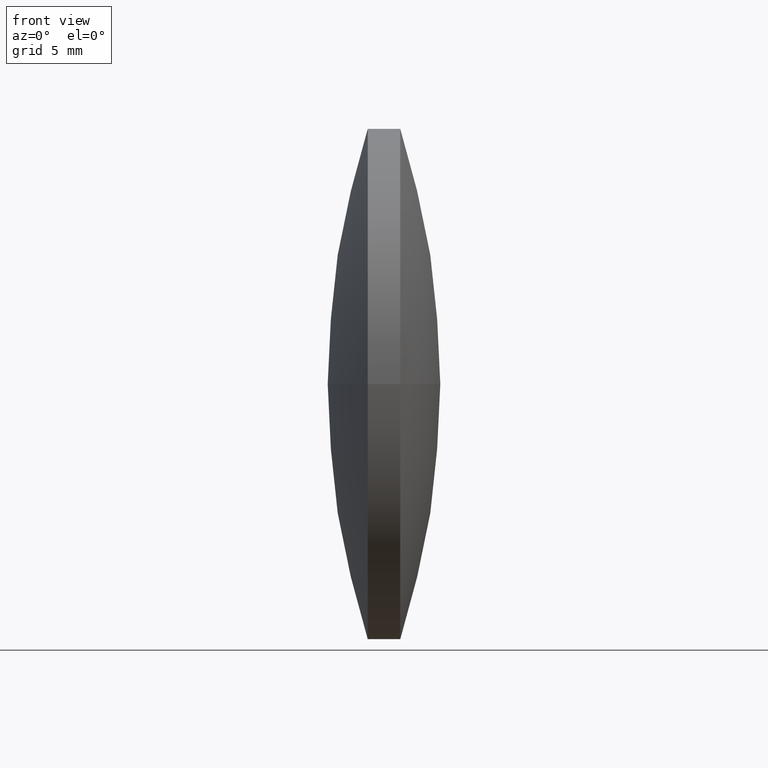
[diagram: clean part render]
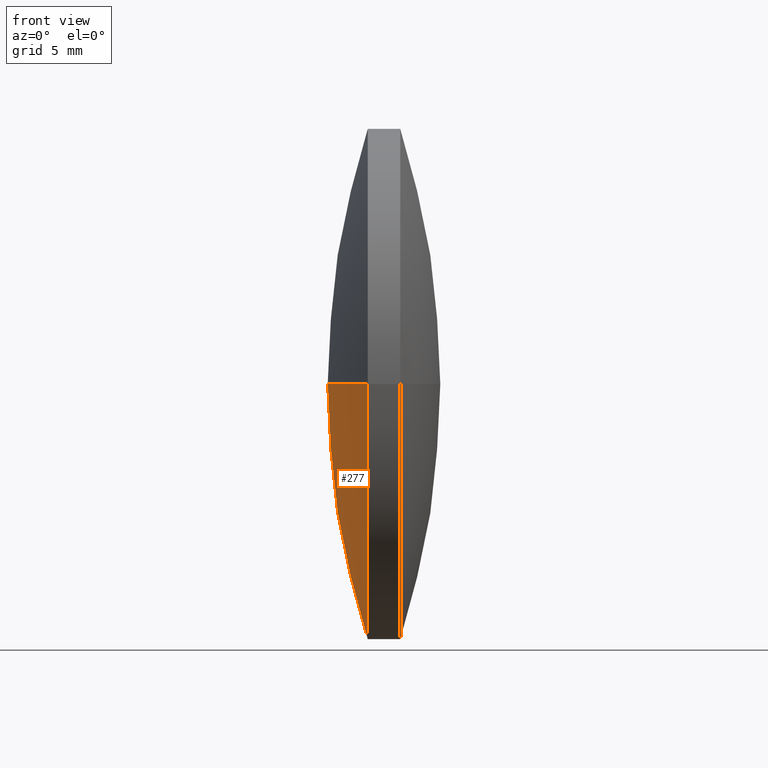
[diagram: same view with one face highlighted and labeled with its STEP entity id]
A machine part, front view. The second image highlights one B-rep face of the part: STEP entity #277.
In plain terms, the highlighted spherical surface has radius 40.9391 mm.
Its self-contained STEP definition (entity closure, byte-faithful):
#2 = CARTESIAN_POINT ( 'NONE',  ( 123.2857842446510100, 47.85050494407934700, 0.0000000000000000000 ) ) ;
#19 = EDGE_LOOP ( 'NONE', ( #173, #93, #224 ) ) ;
#26 = DIRECTION ( 'NONE',  ( 0.0000000000000000000, 0.0000000000000000000, -1.000000000000000000 ) ) ;
#30 = DIRECTION ( 'NONE',  ( 4.406815958448730300E-015, 1.000000000000000000, 0.0000000000000000000 ) ) ;
#36 = FACE_OUTER_BOUND ( 'NONE', #19, .T. ) ;
#37 = VERTEX_POINT ( 'NONE', #142 ) ;
#42 = AXIS2_PLACEMENT_3D ( 'NONE', #97, #48, #290 ) ;
#48 = DIRECTION ( 'NONE',  ( -1.000000000000000000, 4.264506765781650100E-015, -0.0000000000000000000 ) ) ;
#59 = EDGE_CURVE ( 'NONE', #86, #255, #141, .T. ) ;
#66 = SPHERICAL_SURFACE ( 'NONE', #170, 40.93913682864477700 ) ;
#69 = DIRECTION ( 'NONE',  ( 0.0000000000000000000, 1.000000000000000000, 1.224646799147353200E-016 ) ) ;
#70 = CIRCLE ( 'NONE', #179, 40.93913682864476300 ) ;
#75 = CARTESIAN_POINT ( 'NONE',  ( 82.34664741600623500, 47.85050494407952500, 0.0000000000000000000 ) ) ;
#82 = DIRECTION ( 'NONE',  ( 1.000000000000000000, 0.0000000000000000000, 0.0000000000000000000 ) ) ;
#86 = VERTEX_POINT ( 'NONE', #189 ) ;
#93 = ORIENTED_EDGE ( 'NONE', *, *, #59, .T. ) ;
#94 = EDGE_CURVE ( 'NONE', #37, #86, #285, .T. ) ;
#97 = CARTESIAN_POINT ( 'NONE',  ( 84.30164741600614800, 47.85050494407936800, 0.0000000000000000000 ) ) ;
#121 = DIRECTION ( 'NONE',  ( 5.222514560656729000E-031, 1.224646799147353200E-016, -1.000000000000000000 ) ) ;
#141 = CIRCLE ( 'NONE', #159, 40.93913682864477700 ) ;
#142 = CARTESIAN_POINT ( 'NONE',  ( 84.30164741600620500, 60.35050494407931200, 0.0000000000000000000 ) ) ;
#148 = EDGE_CURVE ( 'NONE', #37, #255, #70, .T. ) ;
#159 = AXIS2_PLACEMENT_3D ( 'NONE', #237, #121, #69 ) ;
#170 = AXIS2_PLACEMENT_3D ( 'NONE', #2, #26, #30 ) ;
#173 = ORIENTED_EDGE ( 'NONE', *, *, #94, .T. ) ;
#179 = AXIS2_PLACEMENT_3D ( 'NONE', #201, #225, #82 ) ;
#189 = CARTESIAN_POINT ( 'NONE',  ( 84.30164741600609100, 35.35050494407955300, -1.530808498934185800E-015 ) ) ;
#201 = CARTESIAN_POINT ( 'NONE',  ( 123.2857842446510100, 47.85050494407934700, 0.0000000000000000000 ) ) ;
#224 = ORIENTED_EDGE ( 'NONE', *, *, #148, .F. ) ;
#225 = DIRECTION ( 'NONE',  ( 0.0000000000000000000, 0.0000000000000000000, 1.000000000000000000 ) ) ;
#237 = CARTESIAN_POINT ( 'NONE',  ( 123.2857842446510100, 47.85050494407934700, 0.0000000000000000000 ) ) ;
#255 = VERTEX_POINT ( 'NONE', #75 ) ;
#277 = ADVANCED_FACE ( 'NONE', ( #36 ), #66, .T. ) ;
#285 = CIRCLE ( 'NONE', #42, 12.49999999999997700 ) ;
#290 = DIRECTION ( 'NONE',  ( -4.440892098500634100E-015, -1.000000000000000000, 0.0000000000000000000 ) ) ;